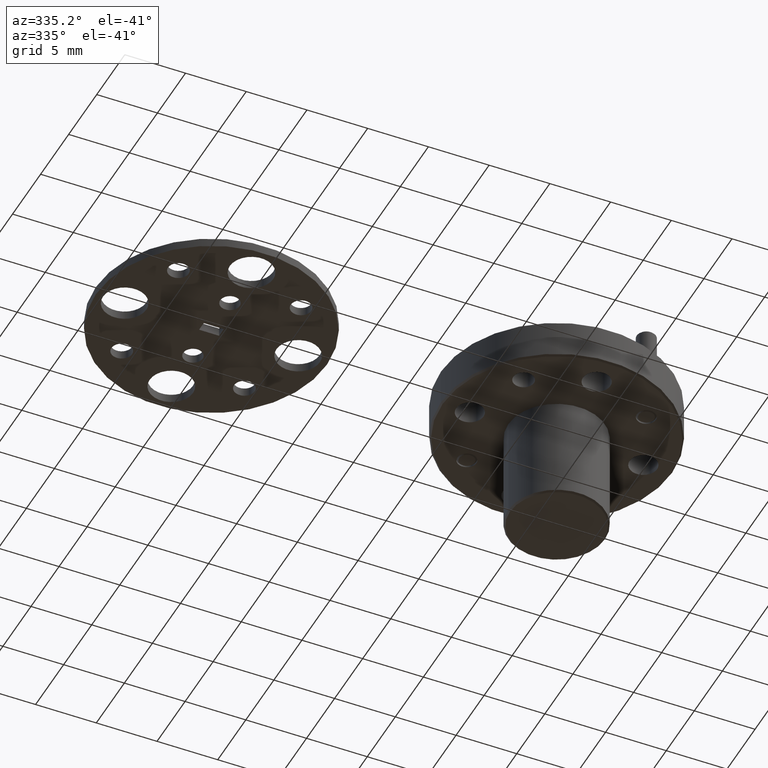
[diagram: clean part render]
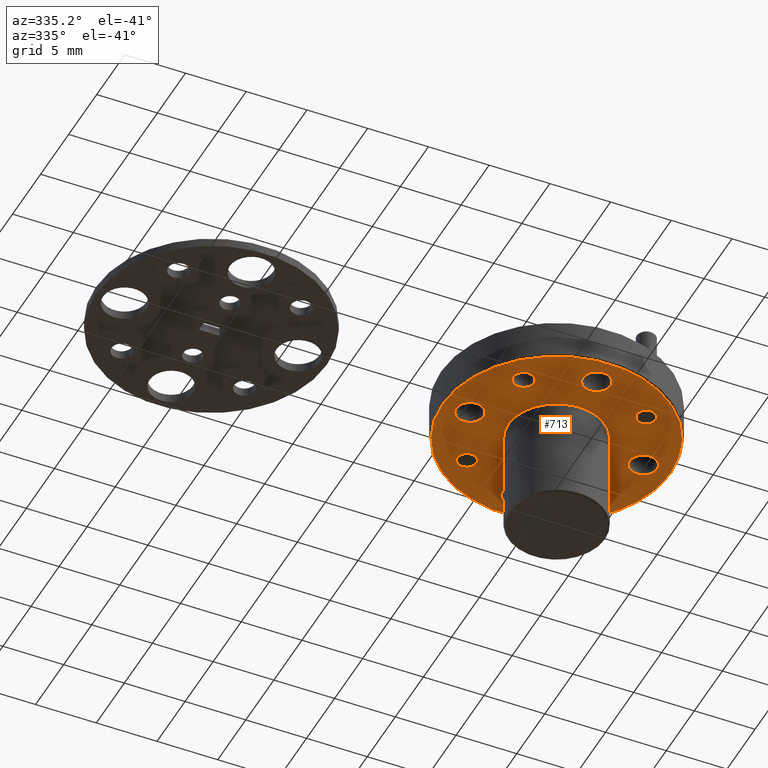
[diagram: same view with one face highlighted and labeled with its STEP entity id]
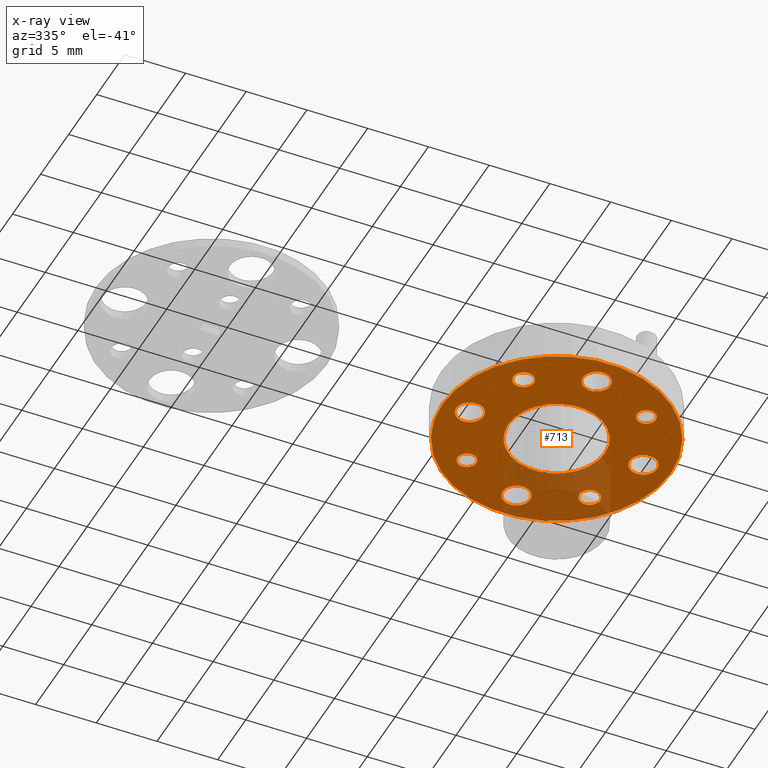
[diagram: x-ray of the same camera — body ghosted, the highlighted face saturated]
A machine part, auxiliary view. The second image highlights one B-rep face of the part: STEP entity #713.
The next image is the same camera in x-ray: the body ghosted, the highlighted face saturated — about 20% of this face is hidden behind the body in this view.
In plain terms, the highlighted planar face has unit normal (0, 0, 1).
Its self-contained STEP definition (entity closure, byte-faithful):
#2 = VERTEX_POINT ( 'NONE', #63 ) ;
#12 = DIRECTION ( 'NONE',  ( 0.0000000000000000000, 0.0000000000000000000, 1.000000000000000000 ) ) ;
#21 = EDGE_CURVE ( 'NONE', #2563, #2203, #1940, .T. ) ;
#25 = CIRCLE ( 'NONE', #575, 0.3699999999999995500 ) ;
#31 = CIRCLE ( 'NONE', #2617, 0.03349999999999993300 ) ;
#49 = DIRECTION ( 'NONE',  ( 1.000000000000000000, 0.0000000000000000000, 0.0000000000000000000 ) ) ;
#63 = CARTESIAN_POINT ( 'NONE',  ( -1.065207662681084700, 1.421262698570898900, -0.4370940517253738600 ) ) ;
#69 = CARTESIAN_POINT ( 'NONE',  ( -1.222833880472367300, 1.222388916362182800, -0.4370940517253738600 ) ) ;
#80 = DIRECTION ( 'NONE',  ( 0.0000000000000000000, 0.0000000000000000000, 1.000000000000000000 ) ) ;
#94 = VERTEX_POINT ( 'NONE', #1738 ) ;
#104 = VERTEX_POINT ( 'NONE', #1981 ) ;
#118 = DIRECTION ( 'NONE',  ( 1.000000000000000000, 0.0000000000000000000, 0.0000000000000000000 ) ) ;
#120 = AXIS2_PLACEMENT_3D ( 'NONE', #2127, #2347, #2552 ) ;
#123 = FACE_BOUND ( 'NONE', #2672, .T. ) ;
#124 = AXIS2_PLACEMENT_3D ( 'NONE', #1419, #1850, #2300 ) ;
#126 = CARTESIAN_POINT ( 'NONE',  ( -0.6603338804723671900, 1.222388916362182800, -0.4370940517253738600 ) ) ;
#149 = CARTESIAN_POINT ( 'NONE',  ( -1.095957662681084300, 1.023515134153466700, -0.4370940517253738600 ) ) ;
#152 = ORIENTED_EDGE ( 'NONE', *, *, #2379, .T. ) ;
#162 = FACE_BOUND ( 'NONE', #562, .T. ) ;
#170 = DIRECTION ( 'NONE',  ( 0.0000000000000000000, 0.0000000000000000000, 1.000000000000000000 ) ) ;
#208 = DIRECTION ( 'NONE',  ( 0.0000000000000000000, 0.0000000000000000000, 1.000000000000000000 ) ) ;
#241 = CARTESIAN_POINT ( 'NONE',  ( -0.8970838804723675300, 1.222388916362182800, -0.4370940517253738600 ) ) ;
#256 = DIRECTION ( 'NONE',  ( 1.000000000000000000, 0.0000000000000000000, 0.0000000000000000000 ) ) ;
#259 = VERTEX_POINT ( 'NONE', #1854 ) ;
#284 = EDGE_CURVE ( 'NONE', #1115, #94, #25, .T. ) ;
#289 = EDGE_CURVE ( 'NONE', #2203, #2563, #2333, .T. ) ;
#298 = CARTESIAN_POINT ( 'NONE',  ( -0.6158338804723675300, 1.222388916362182800, -0.4370940517253738600 ) ) ;
#309 = CIRCLE ( 'NONE', #368, 0.03349999999999993300 ) ;
#318 = DIRECTION ( 'NONE',  ( 1.000000000000000000, 0.0000000000000000000, 0.0000000000000000000 ) ) ;
#341 = DIRECTION ( 'NONE',  ( 0.0000000000000000000, 0.0000000000000000000, 1.000000000000000000 ) ) ;
#345 = EDGE_CURVE ( 'NONE', #1306, #642, #2655, .T. ) ;
#368 = AXIS2_PLACEMENT_3D ( 'NONE', #149, #1487, #118 ) ;
#375 = FACE_BOUND ( 'NONE', #1838, .T. ) ;
#396 = CARTESIAN_POINT ( 'NONE',  ( -1.178333880472367500, 1.222388916362182800, -0.4370940517253738600 ) ) ;
#402 = DIRECTION ( 'NONE',  ( 1.000000000000000000, 0.0000000000000000000, 0.0000000000000000000 ) ) ;
#406 = EDGE_CURVE ( 'NONE', #518, #1117, #309, .T. ) ;
#426 = DIRECTION ( 'NONE',  ( 1.000000000000000000, 0.0000000000000000000, 0.0000000000000000000 ) ) ;
#489 = CARTESIAN_POINT ( 'NONE',  ( -1.178333880472367500, 1.222388916362182800, -0.4370940517253738600 ) ) ;
#492 = CIRCLE ( 'NONE', #124, 0.03074999999999993700 ) ;
#508 = VERTEX_POINT ( 'NONE', #126 ) ;
#518 = VERTEX_POINT ( 'NONE', #1950 ) ;
#519 = FACE_BOUND ( 'NONE', #1603, .T. ) ;
#523 = CARTESIAN_POINT ( 'NONE',  ( -0.8970838804723675300, 1.222388916362182800, -0.4370940517253738600 ) ) ;
#529 = DIRECTION ( 'NONE',  ( 1.000000000000000000, 0.0000000000000000000, 0.0000000000000000000 ) ) ;
#530 = CARTESIAN_POINT ( 'NONE',  ( -0.6982100982636506600, 1.023515134153467000, -0.4370940517253738600 ) ) ;
#544 = CARTESIAN_POINT ( 'NONE',  ( -1.133833880472368000, 1.222388916362182800, -0.4370940517253738600 ) ) ;
#549 = DIRECTION ( 'NONE',  ( 1.000000000000000000, 0.0000000000000000000, -0.0000000000000000000 ) ) ;
#554 = DIRECTION ( 'NONE',  ( 1.000000000000000000, 0.0000000000000000000, 0.0000000000000000000 ) ) ;
#562 = EDGE_LOOP ( 'NONE', ( #1048, #2677 ) ) ;
#563 = CIRCLE ( 'NONE', #1022, 0.04449999999999962300 ) ;
#575 = AXIS2_PLACEMENT_3D ( 'NONE', #2533, #2768, #49 ) ;
#580 = AXIS2_PLACEMENT_3D ( 'NONE', #1291, #1059, #2662 ) ;
#620 = EDGE_LOOP ( 'NONE', ( #1459, #862 ) ) ;
#623 = CIRCLE ( 'NONE', #2593, 0.04449999999999969300 ) ;
#631 = ORIENTED_EDGE ( 'NONE', *, *, #1918, .T. ) ;
#642 = VERTEX_POINT ( 'NONE', #1839 ) ;
#651 = DIRECTION ( 'NONE',  ( 0.0000000000000000000, 0.0000000000000000000, 1.000000000000000000 ) ) ;
#652 = AXIS2_PLACEMENT_3D ( 'NONE', #241, #2496, #2939 ) ;
#691 = VERTEX_POINT ( 'NONE', #2354 ) ;
#713 = ADVANCED_FACE ( 'NONE', ( #1721, #1362, #519, #2864, #162, #2262, #2498, #123, #1542, #375 ), #2584, .F. ) ;
#752 = AXIS2_PLACEMENT_3D ( 'NONE', #2810, #1691, #529 ) ;
#756 = CARTESIAN_POINT ( 'NONE',  ( -0.6647100982636509100, 1.421262698570899200, -0.4370940517253738600 ) ) ;
#758 = CIRCLE ( 'NONE', #834, 0.04449999999999975500 ) ;
#776 = ORIENTED_EDGE ( 'NONE', *, *, #2817, .T. ) ;
#834 = AXIS2_PLACEMENT_3D ( 'NONE', #2100, #80, #2779 ) ;
#835 = CIRCLE ( 'NONE', #2164, 0.03074999999999993700 ) ;
#862 = ORIENTED_EDGE ( 'NONE', *, *, #289, .T. ) ;
#872 = DIRECTION ( 'NONE',  ( 0.0000000000000000000, 0.0000000000000000000, 1.000000000000000000 ) ) ;
#897 = ORIENTED_EDGE ( 'NONE', *, *, #1505, .T. ) ;
#935 = ORIENTED_EDGE ( 'NONE', *, *, #406, .T. ) ;
#938 = ORIENTED_EDGE ( 'NONE', *, *, #1030, .F. ) ;
#967 = CARTESIAN_POINT ( 'NONE',  ( -0.8525838804723677700, 0.9411389163621828300, -0.4370940517253738600 ) ) ;
#971 = ORIENTED_EDGE ( 'NONE', *, *, #2342, .T. ) ;
#1022 = AXIS2_PLACEMENT_3D ( 'NONE', #489, #12, #256 ) ;
#1030 = EDGE_CURVE ( 'NONE', #642, #1306, #2255, .T. ) ;
#1032 = CIRCLE ( 'NONE', #2103, 0.04449999999999962300 ) ;
#1048 = ORIENTED_EDGE ( 'NONE', *, *, #1500, .T. ) ;
#1059 = DIRECTION ( 'NONE',  ( 0.0000000000000000000, 0.0000000000000000000, 1.000000000000000000 ) ) ;
#1080 = DIRECTION ( 'NONE',  ( 1.000000000000000000, 0.0000000000000000000, 0.0000000000000000000 ) ) ;
#1115 = VERTEX_POINT ( 'NONE', #2024 ) ;
#1117 = VERTEX_POINT ( 'NONE', #1799 ) ;
#1141 = CIRCLE ( 'NONE', #120, 0.04449999999999975500 ) ;
#1164 = CARTESIAN_POINT ( 'NONE',  ( -0.9415838804723673000, 1.503638916362183100, -0.4370940517253738600 ) ) ;
#1175 = ORIENTED_EDGE ( 'NONE', *, *, #2355, .T. ) ;
#1188 = AXIS2_PLACEMENT_3D ( 'NONE', #1664, #1675, #554 ) ;
#1193 = DIRECTION ( 'NONE',  ( 0.0000000000000000000, 0.0000000000000000000, 1.000000000000000000 ) ) ;
#1195 = CARTESIAN_POINT ( 'NONE',  ( -0.8970838804723675300, 1.503638916362183100, -0.4370940517253738600 ) ) ;
#1205 = AXIS2_PLACEMENT_3D ( 'NONE', #2645, #1272, #1955 ) ;
#1238 = DIRECTION ( 'NONE',  ( 1.000000000000000000, 0.0000000000000000000, 0.0000000000000000000 ) ) ;
#1272 = DIRECTION ( 'NONE',  ( 0.0000000000000000000, 0.0000000000000000000, 1.000000000000000000 ) ) ;
#1291 = CARTESIAN_POINT ( 'NONE',  ( -1.095957662681084300, 1.023515134153466700, -0.4370940517253738600 ) ) ;
#1306 = VERTEX_POINT ( 'NONE', #1915 ) ;
#1320 = CARTESIAN_POINT ( 'NONE',  ( -0.8525838804723677700, 1.503638916362183100, -0.4370940517253738600 ) ) ;
#1326 = CIRCLE ( 'NONE', #580, 0.03349999999999993300 ) ;
#1336 = CIRCLE ( 'NONE', #1756, 0.03349999999999993300 ) ;
#1344 = DIRECTION ( 'NONE',  ( 1.000000000000000000, 0.0000000000000000000, 0.0000000000000000000 ) ) ;
#1347 = EDGE_CURVE ( 'NONE', #2083, #259, #2273, .T. ) ;
#1362 = FACE_BOUND ( 'NONE', #2091, .T. ) ;
#1407 = AXIS2_PLACEMENT_3D ( 'NONE', #523, #2559, #549 ) ;
#1419 = CARTESIAN_POINT ( 'NONE',  ( -1.095957662681084500, 1.421262698570898900, -0.4370940517253738600 ) ) ;
#1444 = CARTESIAN_POINT ( 'NONE',  ( -0.8970838804723675300, 1.503638916362183100, -0.4370940517253738600 ) ) ;
#1459 = ORIENTED_EDGE ( 'NONE', *, *, #21, .T. ) ;
#1487 = DIRECTION ( 'NONE',  ( 0.0000000000000000000, 0.0000000000000000000, 1.000000000000000000 ) ) ;
#1489 = AXIS2_PLACEMENT_3D ( 'NONE', #2254, #872, #1344 ) ;
#1496 = VERTEX_POINT ( 'NONE', #2881 ) ;
#1500 = EDGE_CURVE ( 'NONE', #2282, #691, #31, .T. ) ;
#1505 = EDGE_CURVE ( 'NONE', #2247, #2, #835, .T. ) ;
#1542 = FACE_BOUND ( 'NONE', #2643, .T. ) ;
#1574 = AXIS2_PLACEMENT_3D ( 'NONE', #1444, #2564, #1238 ) ;
#1590 = ORIENTED_EDGE ( 'NONE', *, *, #345, .F. ) ;
#1593 = EDGE_CURVE ( 'NONE', #691, #2282, #1336, .T. ) ;
#1603 = EDGE_LOOP ( 'NONE', ( #2870, #2448 ) ) ;
#1608 = CIRCLE ( 'NONE', #1205, 0.04449999999999969300 ) ;
#1611 = EDGE_CURVE ( 'NONE', #1956, #2913, #563, .T. ) ;
#1664 = CARTESIAN_POINT ( 'NONE',  ( -0.8970838804723675300, 1.222388916362182800, -0.4370940517253738600 ) ) ;
#1675 = DIRECTION ( 'NONE',  ( -0.0000000000000000000, -0.0000000000000000000, -1.000000000000000000 ) ) ;
#1691 = DIRECTION ( 'NONE',  ( -0.0000000000000000000, -0.0000000000000000000, -1.000000000000000000 ) ) ;
#1709 = ORIENTED_EDGE ( 'NONE', *, *, #2886, .T. ) ;
#1721 = FACE_OUTER_BOUND ( 'NONE', #2208, .T. ) ;
#1738 = CARTESIAN_POINT ( 'NONE',  ( -1.267083880472367200, 1.222388916362182800, -0.4370940517253738600 ) ) ;
#1744 = EDGE_CURVE ( 'NONE', #2, #2247, #492, .T. ) ;
#1756 = AXIS2_PLACEMENT_3D ( 'NONE', #2032, #208, #426 ) ;
#1793 = EDGE_LOOP ( 'NONE', ( #1175, #935 ) ) ;
#1799 = CARTESIAN_POINT ( 'NONE',  ( -1.062457662681084400, 1.023515134153466700, -0.4370940517253738600 ) ) ;
#1818 = VERTEX_POINT ( 'NONE', #967 ) ;
#1838 = EDGE_LOOP ( 'NONE', ( #1590, #938 ) ) ;
#1839 = CARTESIAN_POINT ( 'NONE',  ( -1.053583880472367600, 1.222388916362182800, -0.4370940517253738600 ) ) ;
#1850 = DIRECTION ( 'NONE',  ( 0.0000000000000000000, 0.0000000000000000000, 1.000000000000000000 ) ) ;
#1854 = CARTESIAN_POINT ( 'NONE',  ( -0.6674600982636507100, 1.023515134153467000, -0.4370940517253738600 ) ) ;
#1903 = DIRECTION ( 'NONE',  ( 1.000000000000000000, 0.0000000000000000000, 0.0000000000000000000 ) ) ;
#1915 = CARTESIAN_POINT ( 'NONE',  ( -0.7405838804723676700, 1.222388916362182800, -0.4370940517253738600 ) ) ;
#1918 = EDGE_CURVE ( 'NONE', #94, #1115, #2369, .T. ) ;
#1940 = CIRCLE ( 'NONE', #2488, 0.04449999999999975500 ) ;
#1950 = CARTESIAN_POINT ( 'NONE',  ( -1.129457662681084400, 1.023515134153466700, -0.4370940517253738600 ) ) ;
#1955 = DIRECTION ( 'NONE',  ( 1.000000000000000000, 0.0000000000000000000, 0.0000000000000000000 ) ) ;
#1956 = VERTEX_POINT ( 'NONE', #544 ) ;
#1981 = CARTESIAN_POINT ( 'NONE',  ( -0.9415838804723673000, 0.9411389163621828300, -0.4370940517253738600 ) ) ;
#1989 = DIRECTION ( 'NONE',  ( 1.000000000000000000, 0.0000000000000000000, 0.0000000000000000000 ) ) ;
#2024 = CARTESIAN_POINT ( 'NONE',  ( -0.5270838804723680900, 1.222388916362182800, -0.4370940517253738600 ) ) ;
#2032 = CARTESIAN_POINT ( 'NONE',  ( -0.6982100982636508800, 1.421262698570899200, -0.4370940517253738600 ) ) ;
#2083 = VERTEX_POINT ( 'NONE', #2224 ) ;
#2091 = EDGE_LOOP ( 'NONE', ( #2249, #897 ) ) ;
#2100 = CARTESIAN_POINT ( 'NONE',  ( -0.8970838804723675300, 0.9411389163621828300, -0.4370940517253738600 ) ) ;
#2103 = AXIS2_PLACEMENT_3D ( 'NONE', #396, #170, #402 ) ;
#2127 = CARTESIAN_POINT ( 'NONE',  ( -0.8970838804723675300, 0.9411389163621828300, -0.4370940517253738600 ) ) ;
#2164 = AXIS2_PLACEMENT_3D ( 'NONE', #2679, #2701, #1080 ) ;
#2203 = VERTEX_POINT ( 'NONE', #1164 ) ;
#2208 = EDGE_LOOP ( 'NONE', ( #2426, #631 ) ) ;
#2214 = EDGE_CURVE ( 'NONE', #104, #1818, #758, .T. ) ;
#2224 = CARTESIAN_POINT ( 'NONE',  ( -0.7289600982636506000, 1.023515134153467000, -0.4370940517253738600 ) ) ;
#2247 = VERTEX_POINT ( 'NONE', #2344 ) ;
#2249 = ORIENTED_EDGE ( 'NONE', *, *, #1744, .T. ) ;
#2254 = CARTESIAN_POINT ( 'NONE',  ( -0.6982100982636506600, 1.023515134153467000, -0.4370940517253738600 ) ) ;
#2255 = CIRCLE ( 'NONE', #652, 0.1564999999999999400 ) ;
#2262 = FACE_BOUND ( 'NONE', #620, .T. ) ;
#2273 = CIRCLE ( 'NONE', #2370, 0.03074999999999993700 ) ;
#2282 = VERTEX_POINT ( 'NONE', #756 ) ;
#2300 = DIRECTION ( 'NONE',  ( 1.000000000000000000, 0.0000000000000000000, 0.0000000000000000000 ) ) ;
#2333 = CIRCLE ( 'NONE', #1574, 0.04449999999999975500 ) ;
#2342 = EDGE_CURVE ( 'NONE', #508, #1496, #1608, .T. ) ;
#2344 = CARTESIAN_POINT ( 'NONE',  ( -1.126707662681084600, 1.421262698570898900, -0.4370940517253738600 ) ) ;
#2347 = DIRECTION ( 'NONE',  ( 0.0000000000000000000, 0.0000000000000000000, 1.000000000000000000 ) ) ;
#2352 = DIRECTION ( 'NONE',  ( 0.0000000000000000000, 0.0000000000000000000, 1.000000000000000000 ) ) ;
#2354 = CARTESIAN_POINT ( 'NONE',  ( -0.7317100982636508500, 1.421262698570899200, -0.4370940517253738600 ) ) ;
#2355 = EDGE_CURVE ( 'NONE', #1117, #518, #1326, .T. ) ;
#2369 = CIRCLE ( 'NONE', #1188, 0.3699999999999995500 ) ;
#2370 = AXIS2_PLACEMENT_3D ( 'NONE', #530, #341, #1903 ) ;
#2379 = EDGE_CURVE ( 'NONE', #2913, #1956, #1032, .T. ) ;
#2426 = ORIENTED_EDGE ( 'NONE', *, *, #284, .T. ) ;
#2448 = ORIENTED_EDGE ( 'NONE', *, *, #1347, .T. ) ;
#2488 = AXIS2_PLACEMENT_3D ( 'NONE', #1195, #2352, #318 ) ;
#2496 = DIRECTION ( 'NONE',  ( -0.0000000000000000000, -0.0000000000000000000, -1.000000000000000000 ) ) ;
#2498 = FACE_BOUND ( 'NONE', #2882, .T. ) ;
#2516 = EDGE_CURVE ( 'NONE', #259, #2083, #2748, .T. ) ;
#2533 = CARTESIAN_POINT ( 'NONE',  ( -0.8970838804723675300, 1.222388916362182800, -0.4370940517253738600 ) ) ;
#2552 = DIRECTION ( 'NONE',  ( 1.000000000000000000, 0.0000000000000000000, 0.0000000000000000000 ) ) ;
#2559 = DIRECTION ( 'NONE',  ( 0.0000000000000000000, 0.0000000000000000000, 1.000000000000000000 ) ) ;
#2563 = VERTEX_POINT ( 'NONE', #1320 ) ;
#2564 = DIRECTION ( 'NONE',  ( 0.0000000000000000000, 0.0000000000000000000, 1.000000000000000000 ) ) ;
#2584 = PLANE ( 'NONE',  #1407 ) ;
#2593 = AXIS2_PLACEMENT_3D ( 'NONE', #298, #1193, #2799 ) ;
#2617 = AXIS2_PLACEMENT_3D ( 'NONE', #2885, #651, #1989 ) ;
#2643 = EDGE_LOOP ( 'NONE', ( #2659, #152 ) ) ;
#2645 = CARTESIAN_POINT ( 'NONE',  ( -0.6158338804723675300, 1.222388916362182800, -0.4370940517253738600 ) ) ;
#2655 = CIRCLE ( 'NONE', #752, 0.1564999999999999400 ) ;
#2659 = ORIENTED_EDGE ( 'NONE', *, *, #1611, .T. ) ;
#2662 = DIRECTION ( 'NONE',  ( 1.000000000000000000, 0.0000000000000000000, 0.0000000000000000000 ) ) ;
#2672 = EDGE_LOOP ( 'NONE', ( #776, #2863 ) ) ;
#2677 = ORIENTED_EDGE ( 'NONE', *, *, #1593, .T. ) ;
#2679 = CARTESIAN_POINT ( 'NONE',  ( -1.095957662681084500, 1.421262698570898900, -0.4370940517253738600 ) ) ;
#2701 = DIRECTION ( 'NONE',  ( 0.0000000000000000000, 0.0000000000000000000, 1.000000000000000000 ) ) ;
#2748 = CIRCLE ( 'NONE', #1489, 0.03074999999999993700 ) ;
#2768 = DIRECTION ( 'NONE',  ( -0.0000000000000000000, -0.0000000000000000000, -1.000000000000000000 ) ) ;
#2779 = DIRECTION ( 'NONE',  ( 1.000000000000000000, 0.0000000000000000000, 0.0000000000000000000 ) ) ;
#2799 = DIRECTION ( 'NONE',  ( 1.000000000000000000, 0.0000000000000000000, 0.0000000000000000000 ) ) ;
#2810 = CARTESIAN_POINT ( 'NONE',  ( -0.8970838804723675300, 1.222388916362182800, -0.4370940517253738600 ) ) ;
#2817 = EDGE_CURVE ( 'NONE', #1818, #104, #1141, .T. ) ;
#2863 = ORIENTED_EDGE ( 'NONE', *, *, #2214, .T. ) ;
#2864 = FACE_BOUND ( 'NONE', #1793, .T. ) ;
#2870 = ORIENTED_EDGE ( 'NONE', *, *, #2516, .T. ) ;
#2881 = CARTESIAN_POINT ( 'NONE',  ( -0.5713338804723678800, 1.222388916362182800, -0.4370940517253738600 ) ) ;
#2882 = EDGE_LOOP ( 'NONE', ( #1709, #971 ) ) ;
#2885 = CARTESIAN_POINT ( 'NONE',  ( -0.6982100982636508800, 1.421262698570899200, -0.4370940517253738600 ) ) ;
#2886 = EDGE_CURVE ( 'NONE', #1496, #508, #623, .T. ) ;
#2913 = VERTEX_POINT ( 'NONE', #69 ) ;
#2939 = DIRECTION ( 'NONE',  ( 1.000000000000000000, 0.0000000000000000000, 0.0000000000000000000 ) ) ;